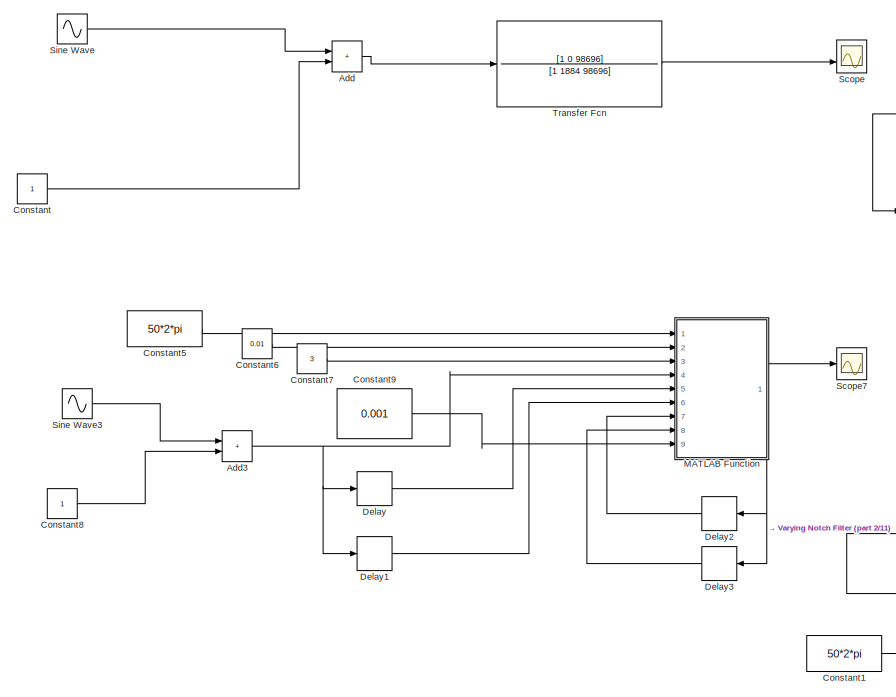
[diagram: root canvas - part 1/11, top left region]
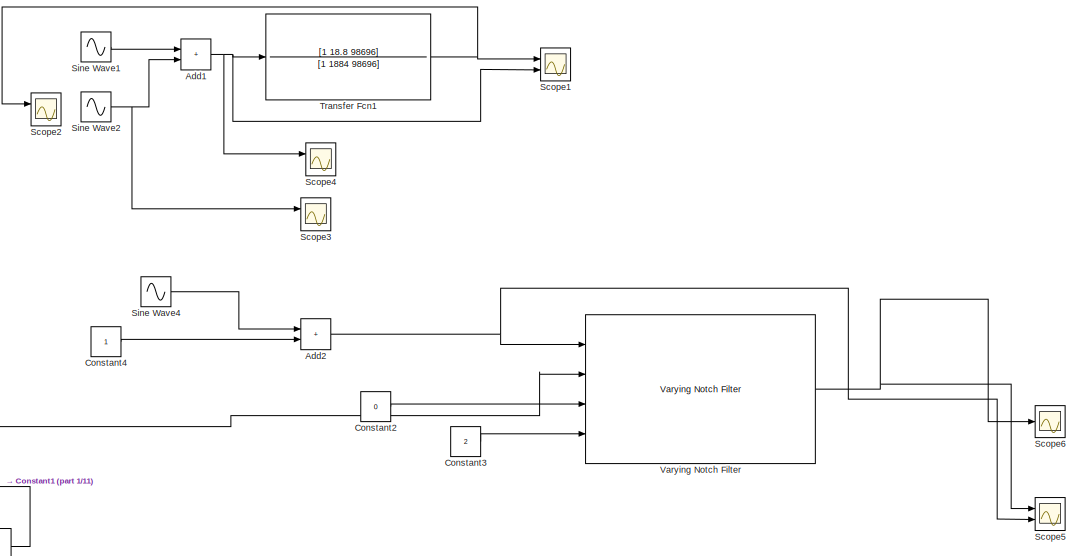
[diagram: root canvas - part 2/11, top center region]
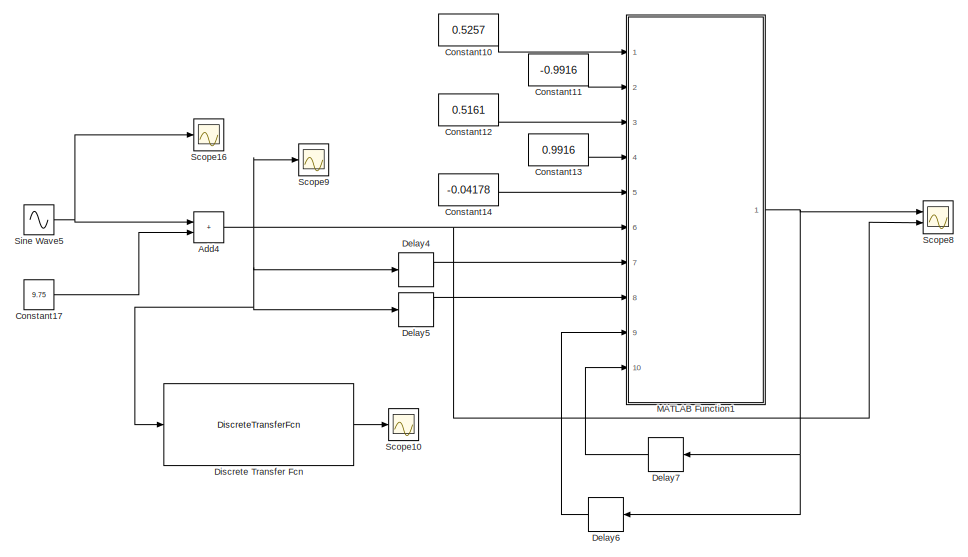
[diagram: root canvas - part 3/11, top center region]
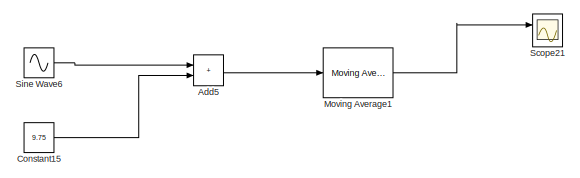
[diagram: root canvas - part 4/11, middle right region]
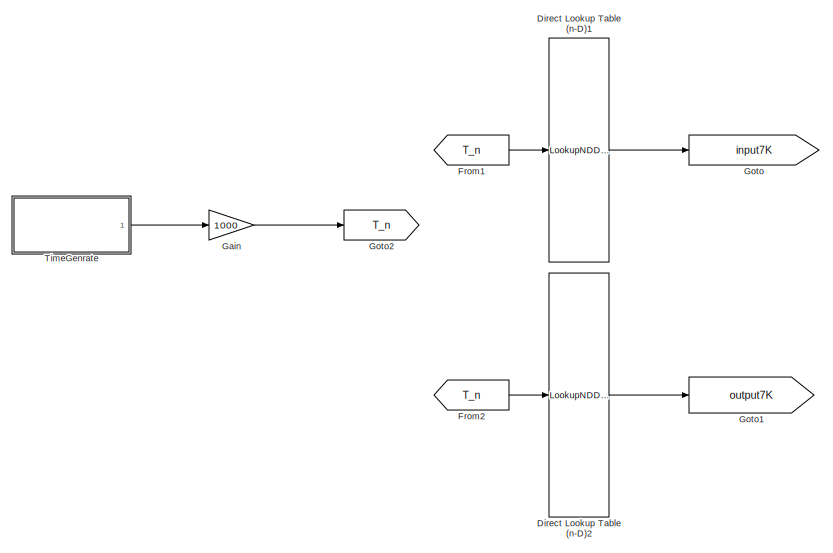
[diagram: root canvas - part 5/11, middle left region]
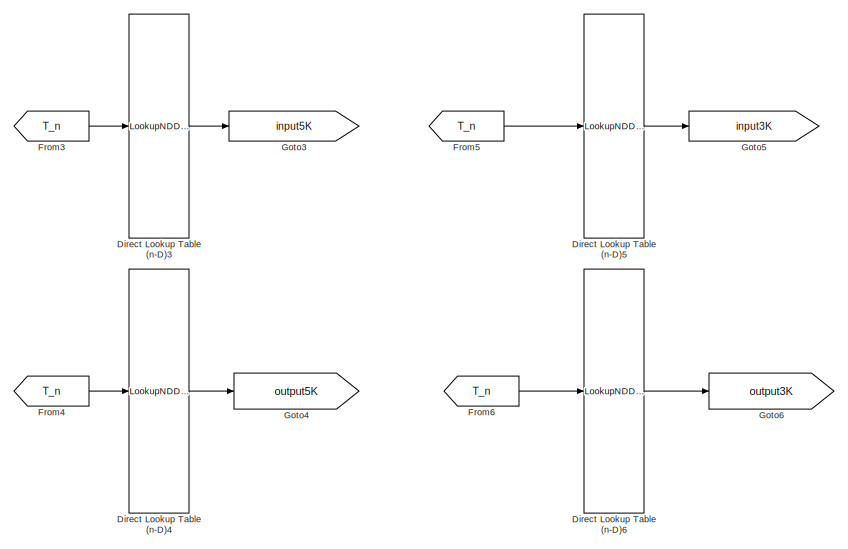
[diagram: root canvas - part 6/11, central region]
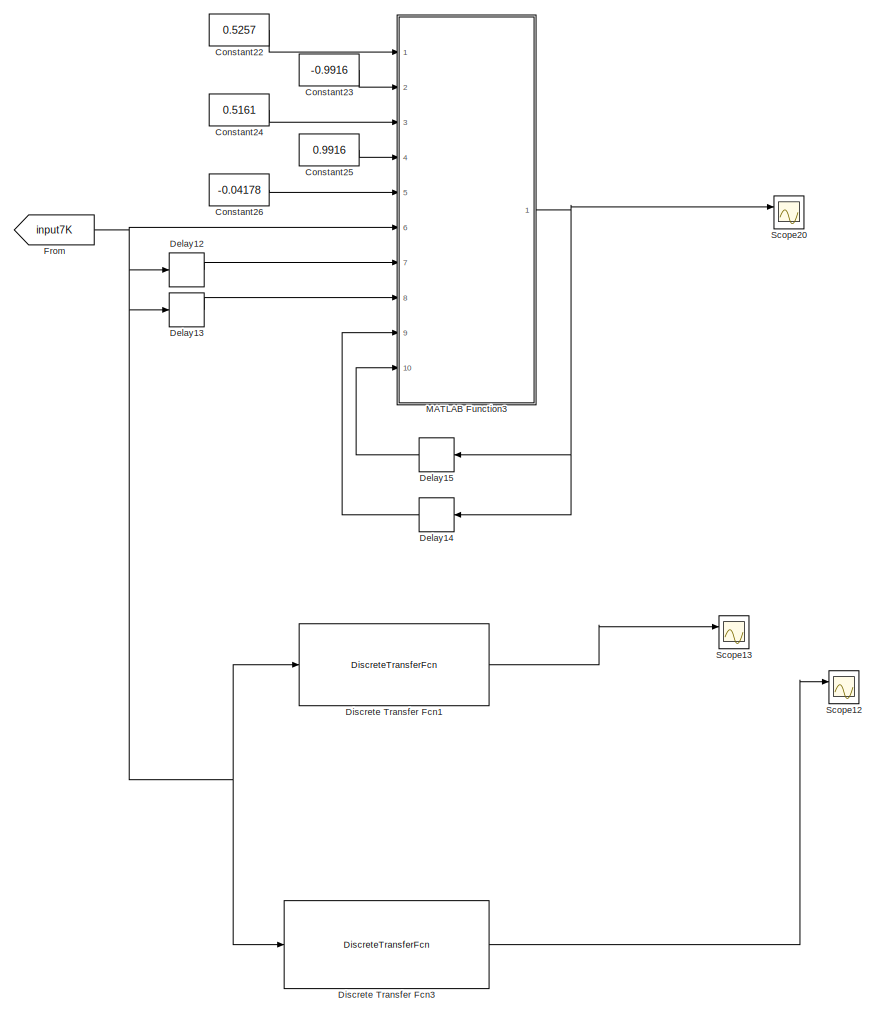
[diagram: root canvas - part 7/11, middle right region]
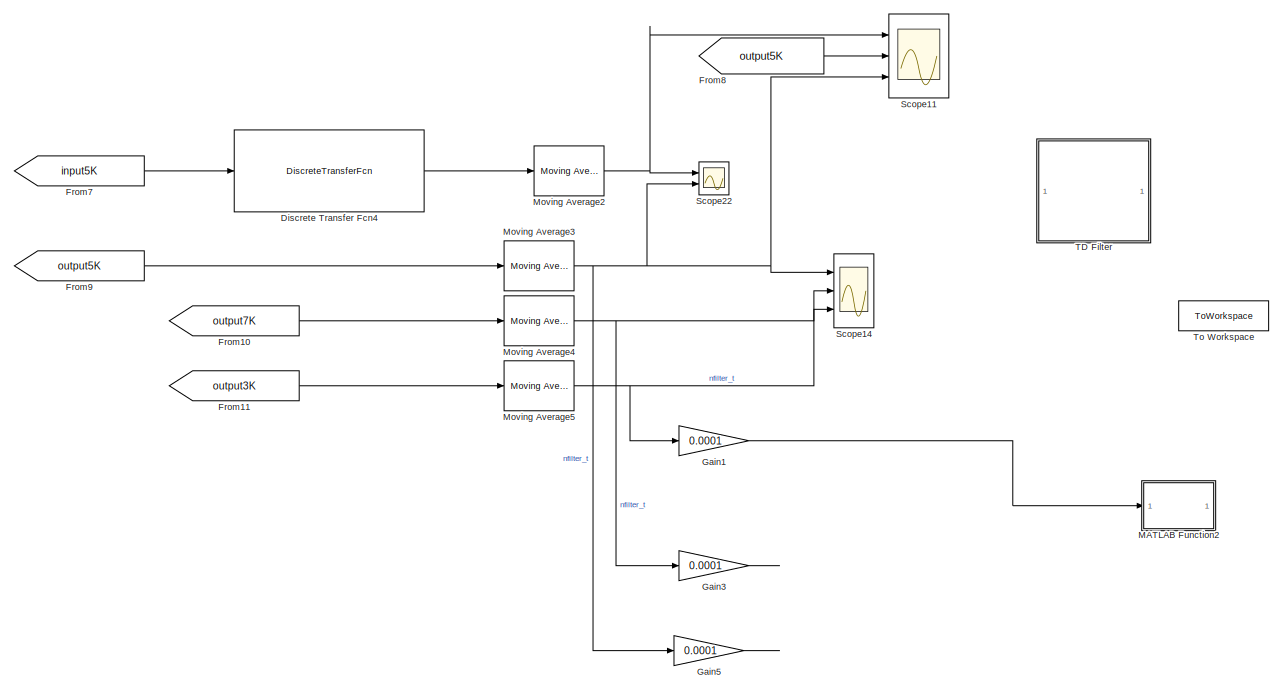
[diagram: root canvas - part 8/11, central region]
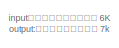
[diagram: root canvas - part 9/11, middle left region]
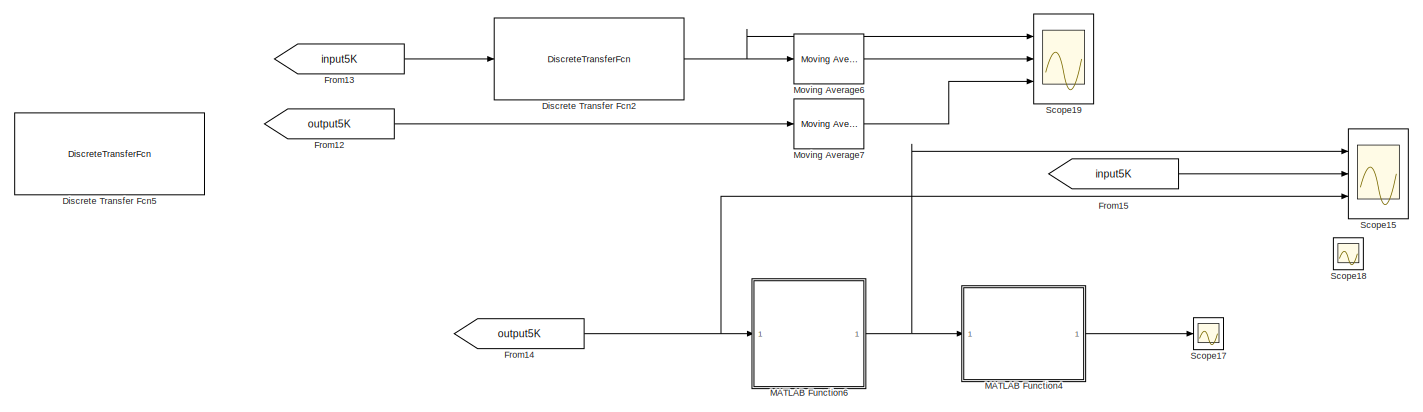
[diagram: root canvas - part 10/11, bottom left region]
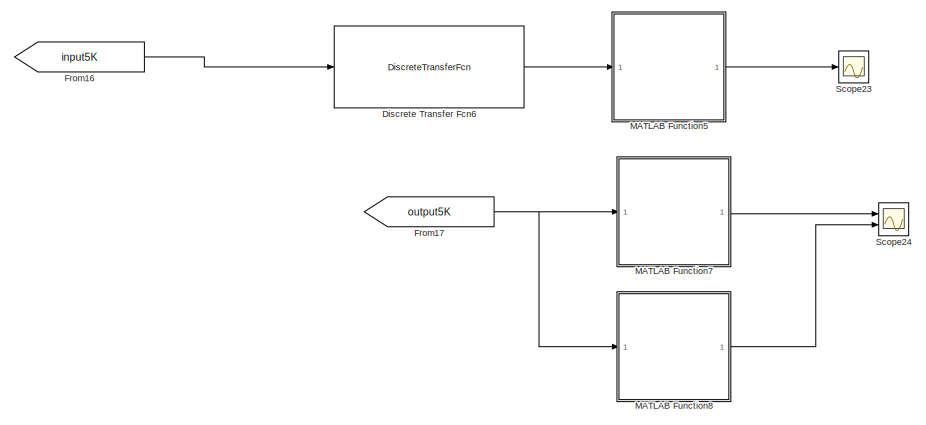
[diagram: root canvas - part 11/11, bottom left region]
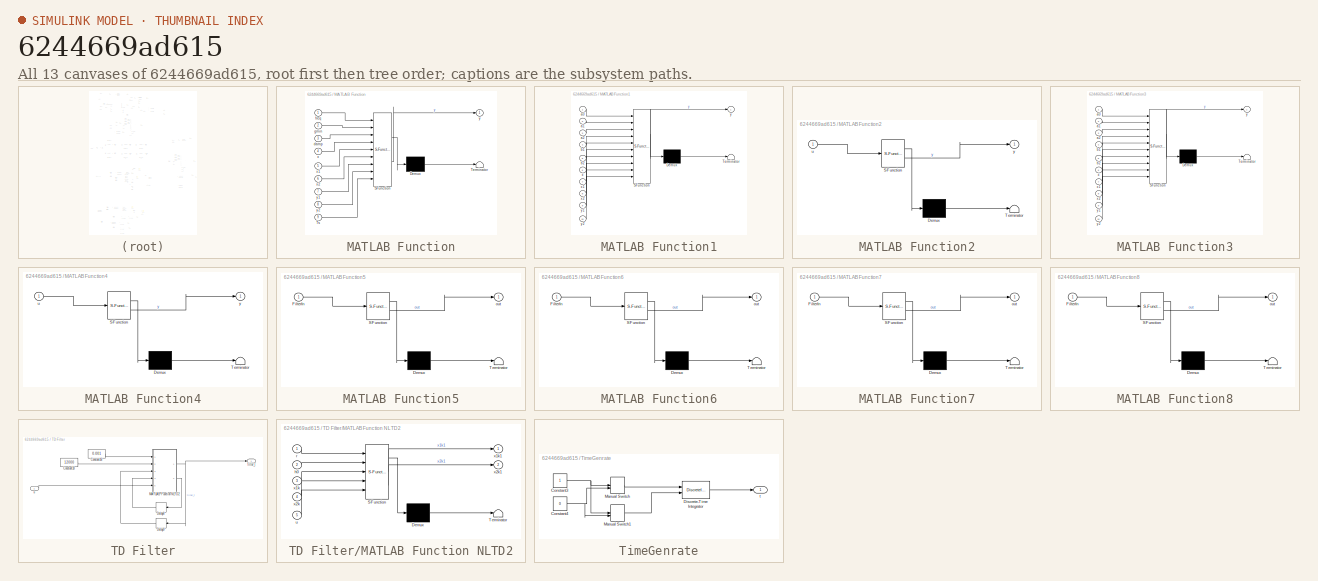
[diagram: thumbnail index - all 13 canvases of the model, root first then tree order]
MODEL slx_6244669ad615
KIND model
CONFIG AbsTol = auto
CONFIG EnableMultiTasking = off
CONFIG FixedStep = 0.001
CONFIG MaxStep = auto
CONFIG MinStep = auto
CONFIG RelTol = 1e-3
CONFIG SampleTimeConstraint = Unconstrained
CONFIG SolverName = ode1
CONFIG StartTime = 0.0
CONFIG StopTime = 10
BLOCK [Sum] Add
  Commented = on
  IconShape = rectangular
  Ports = [2, 1]
BLOCK [Sum] Add1
  Commented = on
  IconShape = rectangular
  Ports = [2, 1]
BLOCK [Sum] Add2
  IconShape = rectangular
  Ports = [2, 1]
BLOCK [Sum] Add3
  Commented = on
  IconShape = rectangular
  Ports = [2, 1]
BLOCK [Sum] Add4
  IconShape = rectangular
  Ports = [2, 1]
BLOCK [Sum] Add5
  IconShape = rectangular
  Ports = [2, 1]
BLOCK [Constant] Constant
  Commented = on
BLOCK [Constant] Constant1
  Value = 50*2*pi
BLOCK [Constant] Constant10
  Value = 0.5257
BLOCK [Constant] Constant11
  Value = -0.9916
BLOCK [Constant] Constant12
  Value = 0.5161
BLOCK [Constant] Constant13
  Value = 0.9916
BLOCK [Constant] Constant14
  Value = -0.04178
BLOCK [Constant] Constant15
  Value = 9.75
BLOCK [Constant] Constant17
  Value = 9.75
BLOCK [Constant] Constant2
  Value = 0
BLOCK [Constant] Constant22
  Value = 0.5257
BLOCK [Constant] Constant23
  Value = -0.9916
BLOCK [Constant] Constant24
  Value = 0.5161
BLOCK [Constant] Constant25
  Value = 0.9916
BLOCK [Constant] Constant26
  Value = -0.04178
BLOCK [Constant] Constant3
  Value = 2
BLOCK [Constant] Constant4
BLOCK [Constant] Constant5
  Commented = on
  Value = 50*2*pi
BLOCK [Constant] Constant6
  Commented = on
  Value = 0.01
BLOCK [Constant] Constant7
  Commented = on
  Value = 3
BLOCK [Constant] Constant8
  Commented = on
BLOCK [Constant] Constant9
  Commented = on
  Value = 0.001
BLOCK [Delay] Delay
  Commented = on
  DelayLength = 1
  InputPortMap = u0
  Ports = [1, 1]
BLOCK [Delay] Delay1
  Commented = on
  InputPortMap = u0
  Ports = [1, 1]
BLOCK [Delay] Delay12
  DelayLength = 1
  InputPortMap = u0
  Ports = [1, 1]
BLOCK [Delay] Delay13
  InputPortMap = u0
  Ports = [1, 1]
BLOCK [Delay] Delay14
  DelayLength = 1
  InputPortMap = u0
  NameLocation = top
  Ports = [1, 1]
BLOCK [Delay] Delay15
  InputPortMap = u0
  NameLocation = top
  Ports = [1, 1]
BLOCK [Delay] Delay2
  Commented = on
  DelayLength = 1
  InputPortMap = u0
  NameLocation = top
  Ports = [1, 1]
BLOCK [Delay] Delay3
  Commented = on
  InputPortMap = u0
  NameLocation = top
  Ports = [1, 1]
BLOCK [Delay] Delay4
  DelayLength = 1
  InputPortMap = u0
  Ports = [1, 1]
BLOCK [Delay] Delay5
  InputPortMap = u0
  Ports = [1, 1]
BLOCK [Delay] Delay6
  DelayLength = 1
  InputPortMap = u0
  NameLocation = top
  Ports = [1, 1]
BLOCK [Delay] Delay7
  InputPortMap = u0
  NameLocation = top
  Ports = [1, 1]
BLOCK [LookupNDDirect] Direct Lookup Table (n-D)1
  NumberOfTableDimensions = 1
  Ports = [1, 1]
  Table = alldata7K_input
BLOCK [LookupNDDirect] Direct Lookup Table (n-D)2
  NumberOfTableDimensions = 1
  Ports = [1, 1]
  Table = alldata7K_output
BLOCK [LookupNDDirect] Direct Lookup Table (n-D)3
  NumberOfTableDimensions = 1
  Ports = [1, 1]
  Table = alldata5K_input
BLOCK [LookupNDDirect] Direct Lookup Table (n-D)4
  NumberOfTableDimensions = 1
  Ports = [1, 1]
  Table = alldata5K_output
BLOCK [LookupNDDirect] Direct Lookup Table (n-D)5
  NumberOfTableDimensions = 1
  Ports = [1, 1]
  Table = alldata3K_input
BLOCK [LookupNDDirect] Direct Lookup Table (n-D)6
  NumberOfTableDimensions = 1
  Ports = [1, 1]
  Table = alldata3K_output
BLOCK [DiscreteTransferFcn] Discrete Transfer Fcn
  Denominator = [1 -0.9916 0.04178]
  InputPortMap = u0
  Numerator = [0.5257 -0.9916 0.5161]
  Ports = [1, 1]
BLOCK [DiscreteTransferFcn] Discrete Transfer Fcn1
  Denominator = [1 -0.9916 0.04178]
  InputPortMap = u0
  Numerator = [0.5257 -0.9916 0.5161]
  Ports = [1, 1]
BLOCK [DiscreteTransferFcn] Discrete Transfer Fcn2
  Denominator = [1 -0.9916 0.04178]
  InputPortMap = u0
  Numerator = [0.5257 -0.9916 0.5161]
  Ports = [1, 1]
BLOCK [DiscreteTransferFcn] Discrete Transfer Fcn3
  Denominator = Hzden
  InputPortMap = u0
  Numerator = Hznum
  Ports = [1, 1]
BLOCK [DiscreteTransferFcn] Discrete Transfer Fcn4
  Denominator = [1 -0.9916 0.04178]
  InputPortMap = u0
  Numerator = [0.5257 -0.9916 0.5161]
  Ports = [1, 1]
BLOCK [DiscreteTransferFcn] Discrete Transfer Fcn5
  Denominator = [1 -0.9916 0.04178]
  InputPortMap = u0
  Numerator = [0.5257 -0.9916 0.5161]
  Ports = [1, 1]
BLOCK [DiscreteTransferFcn] Discrete Transfer Fcn6
  Denominator = [1 -0.9916 0.04178]
  InputPortMap = u0
  Numerator = [0.5257 -0.9916 0.5161]
  Ports = [1, 1]
BLOCK [From] From
  GotoTag = input7K
BLOCK [From] From1
  GotoTag = T_n
BLOCK [From] From10
  GotoTag = output7K
BLOCK [From] From11
  GotoTag = output3K
BLOCK [From] From12
  GotoTag = output5K
BLOCK [From] From13
  GotoTag = input5K
BLOCK [From] From14
  GotoTag = output5K
BLOCK [From] From15
  GotoTag = input5K
BLOCK [From] From16
  GotoTag = input5K
BLOCK [From] From17
  GotoTag = output5K
BLOCK [From] From2
  GotoTag = T_n
BLOCK [From] From3
  GotoTag = T_n
BLOCK [From] From4
  GotoTag = T_n
BLOCK [From] From5
  GotoTag = T_n
BLOCK [From] From6
  GotoTag = T_n
BLOCK [From] From7
  GotoTag = input5K
BLOCK [From] From8
  GotoTag = output5K
BLOCK [From] From9
  GotoTag = output5K
BLOCK [Gain] Gain
  Gain = 1000
BLOCK [Gain] Gain1
  Gain = 0.0001
BLOCK [Gain] Gain3
  Gain = 0.0001
BLOCK [Gain] Gain5
  Gain = 0.0001
BLOCK [Goto] Goto
  GotoTag = input7K
BLOCK [Goto] Goto1
  GotoTag = output7K
BLOCK [Goto] Goto2
  GotoTag = T_n
BLOCK [Goto] Goto3
  GotoTag = input5K
BLOCK [Goto] Goto4
  GotoTag = output5K
BLOCK [Goto] Goto5
  GotoTag = input3K
BLOCK [Goto] Goto6
  GotoTag = output3K
BLOCK [SubSystem] MATLAB Function
  Commented = on
  ErrorFcn = Stateflow.Translate.translate
  PermitHierarchicalResolution = ExplicitOnly
  Ports = [9, 1]
  RequestExecContextInheritance = off
  SFBlockType = MATLAB Function
  TreatAsAtomicUnit = on
BLOCK [Demux] MATLAB Function/ Demux 
  Outputs = 1
  Ports = [1, 1]
BLOCK [S-Function] MATLAB Function/ SFunction 
  EnableBusSupport = on
  FunctionName = sf_sfun
  PortCounts = [9 2]
  Ports = [9, 2]
  SFcnIsStateOwnerBlock = off
  SFunctionDeploymentMode = off
  Tag = Stateflow S-Function 2
BLOCK [Terminator] MATLAB Function/ Terminator 
BLOCK [Inport] MATLAB Function/Ts
  Port = 9
BLOCK [Inport] MATLAB Function/damp
  Port = 3
BLOCK [Inport] MATLAB Function/freq
BLOCK [Inport] MATLAB Function/gmin
  Port = 2
BLOCK [Inport] MATLAB Function/x
  Port = 4
BLOCK [Inport] MATLAB Function/x1
  Port = 5
BLOCK [Inport] MATLAB Function/x2
  Port = 6
BLOCK [Outport] MATLAB Function/y
BLOCK [Inport] MATLAB Function/y1
  Port = 7
BLOCK [Inport] MATLAB Function/y2
  Port = 8
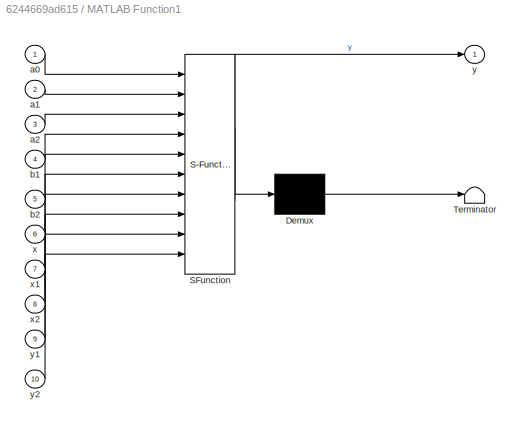
BLOCK [SubSystem] MATLAB Function1
  ErrorFcn = Stateflow.Translate.translate
  PermitHierarchicalResolution = ExplicitOnly
  Ports = [10, 1]
  RequestExecContextInheritance = off
  SFBlockType = MATLAB Function
  TreatAsAtomicUnit = on
BLOCK [Demux] MATLAB Function1/ Demux 
  Outputs = 1
  Ports = [1, 1]
BLOCK [S-Function] MATLAB Function1/ SFunction 
  EnableBusSupport = on
  FunctionName = sf_sfun
  PortCounts = [10 2]
  Ports = [10, 2]
  SFcnIsStateOwnerBlock = off
  SFunctionDeploymentMode = off
  Tag = Stateflow S-Function 1
BLOCK [Terminator] MATLAB Function1/ Terminator 
BLOCK [Inport] MATLAB Function1/a0
BLOCK [Inport] MATLAB Function1/a1
  Port = 2
BLOCK [Inport] MATLAB Function1/a2
  Port = 3
BLOCK [Inport] MATLAB Function1/b1
  Port = 4
BLOCK [Inport] MATLAB Function1/b2
  Port = 5
BLOCK [Inport] MATLAB Function1/x
  Port = 6
BLOCK [Inport] MATLAB Function1/x1
  Port = 7
BLOCK [Inport] MATLAB Function1/x2
  Port = 8
BLOCK [Outport] MATLAB Function1/y
BLOCK [Inport] MATLAB Function1/y1
  Port = 9
BLOCK [Inport] MATLAB Function1/y2
  Port = 10
BLOCK [SubSystem] MATLAB Function2
  ErrorFcn = Stateflow.Translate.translate
  PermitHierarchicalResolution = ExplicitOnly
  Ports = [1, 1]
  RequestExecContextInheritance = off
  SFBlockType = MATLAB Function
  TreatAsAtomicUnit = on
BLOCK [Demux] MATLAB Function2/ Demux 
  Outputs = 1
  Ports = [1, 1]
BLOCK [S-Function] MATLAB Function2/ SFunction 
  EnableBusSupport = on
  FunctionName = sf_sfun
  PortCounts = [1 2]
  Ports = [1, 2]
  SFcnIsStateOwnerBlock = off
  SFunctionDeploymentMode = off
  Tag = Stateflow S-Function 3
BLOCK [Terminator] MATLAB Function2/ Terminator 
BLOCK [Inport] MATLAB Function2/u
BLOCK [Outport] MATLAB Function2/y
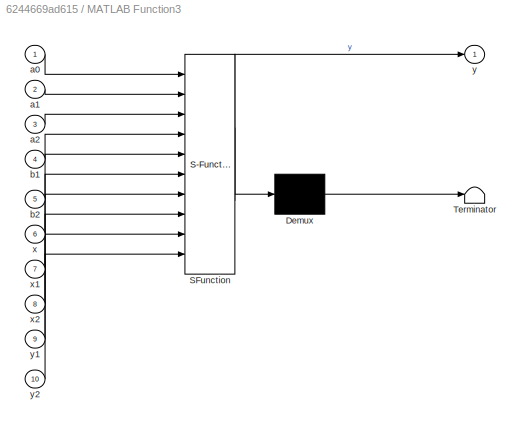
BLOCK [SubSystem] MATLAB Function3
  ErrorFcn = Stateflow.Translate.translate
  PermitHierarchicalResolution = ExplicitOnly
  Ports = [10, 1]
  RequestExecContextInheritance = off
  SFBlockType = MATLAB Function
  TreatAsAtomicUnit = on
BLOCK [Demux] MATLAB Function3/ Demux 
  Outputs = 1
  Ports = [1, 1]
BLOCK [S-Function] MATLAB Function3/ SFunction 
  EnableBusSupport = on
  FunctionName = sf_sfun
  PortCounts = [10 2]
  Ports = [10, 2]
  SFcnIsStateOwnerBlock = off
  SFunctionDeploymentMode = off
  Tag = Stateflow S-Function 4
BLOCK [Terminator] MATLAB Function3/ Terminator 
BLOCK [Inport] MATLAB Function3/a0
BLOCK [Inport] MATLAB Function3/a1
  Port = 2
BLOCK [Inport] MATLAB Function3/a2
  Port = 3
BLOCK [Inport] MATLAB Function3/b1
  Port = 4
BLOCK [Inport] MATLAB Function3/b2
  Port = 5
BLOCK [Inport] MATLAB Function3/x
  Port = 6
BLOCK [Inport] MATLAB Function3/x1
  Port = 7
BLOCK [Inport] MATLAB Function3/x2
  Port = 8
BLOCK [Outport] MATLAB Function3/y
BLOCK [Inport] MATLAB Function3/y1
  Port = 9
BLOCK [Inport] MATLAB Function3/y2
  Port = 10
BLOCK [SubSystem] MATLAB Function4
  ErrorFcn = Stateflow.Translate.translate
  PermitHierarchicalResolution = ExplicitOnly
  Ports = [1, 1]
  RequestExecContextInheritance = off
  SFBlockType = MATLAB Function
  TreatAsAtomicUnit = on
BLOCK [Demux] MATLAB Function4/ Demux 
  Outputs = 1
  Ports = [1, 1]
BLOCK [S-Function] MATLAB Function4/ SFunction 
  EnableBusSupport = on
  FunctionName = sf_sfun
  PortCounts = [1 2]
  Ports = [1, 2]
  SFcnIsStateOwnerBlock = off
  SFunctionDeploymentMode = off
  Tag = Stateflow S-Function 5
BLOCK [Terminator] MATLAB Function4/ Terminator 
BLOCK [Inport] MATLAB Function4/u
BLOCK [Outport] MATLAB Function4/y
BLOCK [SubSystem] MATLAB Function5
  ErrorFcn = Stateflow.Translate.translate
  PermitHierarchicalResolution = ExplicitOnly
  Ports = [1, 1]
  RequestExecContextInheritance = off
  SFBlockType = MATLAB Function
  TreatAsAtomicUnit = on
BLOCK [Demux] MATLAB Function5/ Demux 
  Outputs = 1
  Ports = [1, 1]
BLOCK [S-Function] MATLAB Function5/ SFunction 
  EnableBusSupport = on
  FunctionName = sf_sfun
  PortCounts = [1 2]
  Ports = [1, 2]
  SFcnIsStateOwnerBlock = off
  SFunctionDeploymentMode = off
  Tag = Stateflow S-Function 6
BLOCK [Terminator] MATLAB Function5/ Terminator 
BLOCK [Inport] MATLAB Function5/FilterIn
BLOCK [Outport] MATLAB Function5/out
BLOCK [SubSystem] MATLAB Function6
  ErrorFcn = Stateflow.Translate.translate
  PermitHierarchicalResolution = ExplicitOnly
  Ports = [1, 1]
  RequestExecContextInheritance = off
  SFBlockType = MATLAB Function
  TreatAsAtomicUnit = on
BLOCK [Demux] MATLAB Function6/ Demux 
  Outputs = 1
  Ports = [1, 1]
BLOCK [S-Function] MATLAB Function6/ SFunction 
  EnableBusSupport = on
  FunctionName = sf_sfun
  PortCounts = [1 2]
  Ports = [1, 2]
  SFcnIsStateOwnerBlock = off
  SFunctionDeploymentMode = off
  Tag = Stateflow S-Function 7
BLOCK [Terminator] MATLAB Function6/ Terminator 
BLOCK [Inport] MATLAB Function6/FilterIn
BLOCK [Outport] MATLAB Function6/out
BLOCK [SubSystem] MATLAB Function7
  ErrorFcn = Stateflow.Translate.translate
  PermitHierarchicalResolution = ExplicitOnly
  Ports = [1, 1]
  RequestExecContextInheritance = off
  SFBlockType = MATLAB Function
  TreatAsAtomicUnit = on
BLOCK [Demux] MATLAB Function7/ Demux 
  Outputs = 1
  Ports = [1, 1]
BLOCK [S-Function] MATLAB Function7/ SFunction 
  EnableBusSupport = on
  FunctionName = sf_sfun
  PortCounts = [1 2]
  Ports = [1, 2]
  SFcnIsStateOwnerBlock = off
  SFunctionDeploymentMode = off
  Tag = Stateflow S-Function 8
BLOCK [Terminator] MATLAB Function7/ Terminator 
BLOCK [Inport] MATLAB Function7/FilterIn
BLOCK [Outport] MATLAB Function7/out
BLOCK [SubSystem] MATLAB Function8
  ErrorFcn = Stateflow.Translate.translate
  PermitHierarchicalResolution = ExplicitOnly
  Ports = [1, 1]
  RequestExecContextInheritance = off
  SFBlockType = MATLAB Function
  TreatAsAtomicUnit = on
BLOCK [Demux] MATLAB Function8/ Demux 
  Outputs = 1
  Ports = [1, 1]
BLOCK [S-Function] MATLAB Function8/ SFunction 
  EnableBusSupport = on
  FunctionName = sf_sfun
  PortCounts = [1 2]
  Ports = [1, 2]
  SFcnIsStateOwnerBlock = off
  SFunctionDeploymentMode = off
  Tag = Stateflow S-Function 9
BLOCK [Terminator] MATLAB Function8/ Terminator 
BLOCK [Inport] MATLAB Function8/FilterIn
BLOCK [Outport] MATLAB Function8/out
BLOCK [Reference] Moving Average1  REF=eeGeneralControl/Moving Average
  Ports = [1, 1]
  SourceBlock = eeGeneralControl/Moving Average
  SourceProductBaseCode = PS
  SourceType = Moving Average
BLOCK [Reference] Moving Average2  REF=eeGeneralControl/Moving Average
  Ports = [1, 1]
  SourceBlock = eeGeneralControl/Moving Average
  SourceProductBaseCode = PS
  SourceType = Moving Average
BLOCK [Reference] Moving Average3  REF=eeGeneralControl/Moving Average
  Ports = [1, 1]
  SourceBlock = eeGeneralControl/Moving Average
  SourceProductBaseCode = PS
  SourceType = Moving Average
BLOCK [Reference] Moving Average4  REF=eeGeneralControl/Moving Average
  Ports = [1, 1]
  SourceBlock = eeGeneralControl/Moving Average
  SourceProductBaseCode = PS
  SourceType = Moving Average
BLOCK [Reference] Moving Average5  REF=eeGeneralControl/Moving Average
  Ports = [1, 1]
  SourceBlock = eeGeneralControl/Moving Average
  SourceProductBaseCode = PS
  SourceType = Moving Average
BLOCK [Reference] Moving Average6  REF=eeGeneralControl/Moving Average
  Ports = [1, 1]
  SourceBlock = eeGeneralControl/Moving Average
  SourceProductBaseCode = PS
  SourceType = Moving Average
BLOCK [Reference] Moving Average7  REF=eeGeneralControl/Moving Average
  Ports = [1, 1]
  SourceBlock = eeGeneralControl/Moving Average
  SourceProductBaseCode = PS
  SourceType = Moving Average
BLOCK [Scope] Scope
  Commented = on
  Floating = off
  NumInputPorts = 2
  Ports = [2]
  ScopeSpecificationString = Simulink.scopes.TimeScopeBlockCfg('CurrentConfiguration', extmgr.ConfigurationSet(extmgr.Configuration('Core','General UI',true),extmgr.Configuration('Core','Source UI',true),extmgr.Configuration('Sources','WiredSimulink',true),extmgr.Configuration('Visuals','Time Domain',true,'SerializedDisplays',{struct('MinYLimReal','-1.01727','MaxYLimReal','1.24249','YLabelReal','','MinYLimMag','0.00000','MaxY...<+1386ch>
BLOCK [Scope] Scope1
  Commented = on
  Floating = off
  NumInputPorts = 2
  Ports = [2]
  ScopeSpecificationString = Simulink.scopes.TimeScopeBlockCfg('CurrentConfiguration', extmgr.ConfigurationSet(extmgr.Configuration('Core','General UI',true),extmgr.Configuration('Core','Source UI',true),extmgr.Configuration('Sources','WiredSimulink',true,'DataLoggingVariableName','ScopeData1'),extmgr.Configuration('Visuals','Time Domain',true,'SerializedDisplays',{struct('MinYLimReal','-2.49938','MaxYLimReal','2.49938','YLab...<+1451ch>
BLOCK [Scope] Scope10
  Floating = off
  NumInputPorts = 1
  Ports = [1]
  ScopeSpecificationString = Simulink.scopes.TimeScopeBlockCfg('CurrentConfiguration', extmgr.ConfigurationSet(extmgr.Configuration('Core','General UI',true),extmgr.Configuration('Core','Source UI',true),extmgr.Configuration('Sources','WiredSimulink',true,'DataLoggingVariableName','ScopeData10'),extmgr.Configuration('Visuals','Time Domain',true,'SerializedDisplays',{struct('MinYLimReal','-0.0083','MaxYLimReal','1.11593','YLab...<+1423ch>
BLOCK [Scope] Scope11
  Floating = off
  NumInputPorts = 3
  Ports = [3]
  ScopeSpecificationString = Simulink.scopes.TimeScopeBlockCfg('CurrentConfiguration', extmgr.ConfigurationSet(extmgr.Configuration('Core','General UI',true),extmgr.Configuration('Core','Source UI',true),extmgr.Configuration('Sources','WiredSimulink',true,'DataLoggingVariableName','ScopeData1'),extmgr.Configuration('Visuals','Time Domain',true,'SerializedDisplays',{struct('MinYLimReal','16868.97835','MaxYLimReal','17256.60161...<+1518ch>
BLOCK [Scope] Scope12
  Floating = off
  NumInputPorts = 2
  Ports = [2]
  ScopeSpecificationString = Simulink.scopes.TimeScopeBlockCfg('CurrentConfiguration', extmgr.ConfigurationSet(extmgr.Configuration('Core','General UI',true),extmgr.Configuration('Core','Source UI',true),extmgr.Configuration('Sources','WiredSimulink',true,'DataLoggingVariableName','ScopeData7'),extmgr.Configuration('Visuals','Time Domain',true,'SerializedDisplays',{struct('MinYLimReal','-2685.3139','MaxYLimReal','21487.56118'...<+1507ch>
BLOCK [Scope] Scope13
  Floating = off
  NumInputPorts = 2
  Ports = [2]
  ScopeSpecificationString = Simulink.scopes.TimeScopeBlockCfg('CurrentConfiguration', extmgr.ConfigurationSet(extmgr.Configuration('Core','General UI',true),extmgr.Configuration('Core','Source UI',true),extmgr.Configuration('Sources','WiredSimulink',true,'DataLoggingVariableName','ScopeData8'),extmgr.Configuration('Visuals','Time Domain',true,'SerializedDisplays',{struct('MinYLimReal','-2672.83403','MaxYLimReal','29213.42941...<+1480ch>
BLOCK [Scope] Scope14
  Floating = off
  NumInputPorts = 3
  Ports = [3]
  ScopeSpecificationString = Simulink.scopes.TimeScopeBlockCfg('CurrentConfiguration', extmgr.ConfigurationSet(extmgr.Configuration('Core','General UI',true),extmgr.Configuration('Core','Source UI',true),extmgr.Configuration('Sources','WiredSimulink',true,'DataLoggingVariableName','ScopeData2'),extmgr.Configuration('Visuals','Time Domain',true,'SerializedDisplays',{struct('MinYLimReal','16773.14565','MaxYLimReal','17633.85716...<+1495ch>
BLOCK [Scope] Scope15
  Floating = off
  NumInputPorts = 3
  Ports = [3]
  ScopeSpecificationString = Simulink.scopes.TimeScopeBlockCfg('CurrentConfiguration', extmgr.ConfigurationSet(extmgr.Configuration('Core','General UI',true),extmgr.Configuration('Core','Source UI',true),extmgr.Configuration('Sources','WiredSimulink',true,'DataLoggingVariableName','ScopeData3'),extmgr.Configuration('Visuals','Time Domain',true,'SerializedDisplays',{struct('MinYLimReal','-2436.6125','MaxYLimReal','30428.5125',...<+1525ch>
BLOCK [Scope] Scope16
  Floating = off
  NumInputPorts = 1
  Ports = [1]
  ScopeSpecificationString = Simulink.scopes.TimeScopeBlockCfg('CurrentConfiguration', extmgr.ConfigurationSet(extmgr.Configuration('Core','General UI',true),extmgr.Configuration('Core','Source UI',true),extmgr.Configuration('Sources','WiredSimulink',true,'DataLoggingVariableName','ScopeData16'),extmgr.Configuration('Visuals','Time Domain',true,'SerializedDisplays',{struct('MinYLimReal','-1.5625','MaxYLimReal','1.5625','YLabe...<+1437ch>
BLOCK [Scope] Scope17
  Floating = off
  NumInputPorts = 1
  Ports = [1]
  ScopeSpecificationString = Simulink.scopes.TimeScopeBlockCfg('CurrentConfiguration', extmgr.ConfigurationSet(extmgr.Configuration('Core','General UI',true),extmgr.Configuration('Core','Source UI',true),extmgr.Configuration('Sources','WiredSimulink',true,'DataLoggingVariableName','ScopeData4'),extmgr.Configuration('Visuals','Time Domain',true,'SerializedDisplays',{struct('MinYLimReal','461.62899','MaxYLimReal','890.0245','YL...<+1429ch>
BLOCK [Scope] Scope18
  Floating = off
  NumInputPorts = 1
  Ports = [1]
  ScopeSpecificationString = Simulink.scopes.TimeScopeBlockCfg('CurrentConfiguration', extmgr.ConfigurationSet(extmgr.Configuration('Core','General UI',true),extmgr.Configuration('Core','Source UI',true),extmgr.Configuration('Sources','WiredSimulink',true,'DataLoggingVariableName','ScopeData5'),extmgr.Configuration('Visuals','Time Domain',true,'SerializedDisplays',{struct('MinYLimReal','461.62899','MaxYLimReal','890.0245','YL...<+1429ch>
BLOCK [Scope] Scope19
  Floating = off
  NumInputPorts = 3
  Ports = [3]
  ScopeSpecificationString = Simulink.scopes.TimeScopeBlockCfg('CurrentConfiguration', extmgr.ConfigurationSet(extmgr.Configuration('Core','General UI',true),extmgr.Configuration('Core','Source UI',true),extmgr.Configuration('Sources','WiredSimulink',true,'DataLoggingVariableName','ScopeData6'),extmgr.Configuration('Visuals','Time Domain',true,'SerializedDisplays',{struct('MinYLimReal','-2199.55335','MaxYLimReal','19795.98015...<+1515ch>
BLOCK [Scope] Scope2
  Commented = on
  Floating = off
  NumInputPorts = 2
  Ports = [2]
  ScopeSpecificationString = Simulink.scopes.TimeScopeBlockCfg('CurrentConfiguration', extmgr.ConfigurationSet(extmgr.Configuration('Core','General UI',true),extmgr.Configuration('Core','Source UI',true),extmgr.Configuration('Sources','WiredSimulink',true,'DataLoggingVariableName','ScopeData2'),extmgr.Configuration('Visuals','Time Domain',true,'SerializedDisplays',{struct('MinYLimReal','-2.49938','MaxYLimReal','2.49938','YLab...<+1451ch>
BLOCK [Scope] Scope20
  Floating = off
  NumInputPorts = 2
  Ports = [2]
  ScopeSpecificationString = Simulink.scopes.TimeScopeBlockCfg('CurrentConfiguration', extmgr.ConfigurationSet(extmgr.Configuration('Core','General UI',true),extmgr.Configuration('Core','Source UI',true),extmgr.Configuration('Sources','WiredSimulink',true,'DataLoggingVariableName','ScopeData5'),extmgr.Configuration('Visuals','Time Domain',true,'SerializedDisplays',{struct('MinYLimReal','-2685.3139','MaxYLimReal','21487.56118'...<+1472ch>
BLOCK [Scope] Scope21
  Floating = off
  NumInputPorts = 2
  Ports = [2]
  ScopeSpecificationString = Simulink.scopes.TimeScopeBlockCfg('CurrentConfiguration', extmgr.ConfigurationSet(extmgr.Configuration('Core','General UI',true),extmgr.Configuration('Core','Source UI',true),extmgr.Configuration('Sources','WiredSimulink',true,'DataLoggingVariableName','ScopeData10'),extmgr.Configuration('Visuals','Time Domain',true,'SerializedDisplays',{struct('MinYLimReal','-1.21875','MaxYLimReal','10.96875','YL...<+1459ch>
BLOCK [Scope] Scope22
  Floating = off
  NumInputPorts = 2
  Ports = [2]
  ScopeSpecificationString = Simulink.scopes.TimeScopeBlockCfg('CurrentConfiguration', extmgr.ConfigurationSet(extmgr.Configuration('Core','General UI',true),extmgr.Configuration('Core','Source UI',true),extmgr.Configuration('Sources','WiredSimulink',true,'DataLoggingVariableName','ScopeData11'),extmgr.Configuration('Visuals','Time Domain',true,'SerializedDisplays',{struct('MinYLimReal','4627.25','MaxYLimReal','29894.75','YLa...<+1468ch>
BLOCK [Scope] Scope23
  Floating = off
  NumInputPorts = 1
  Ports = [1]
  ScopeSpecificationString = Simulink.scopes.TimeScopeBlockCfg('CurrentConfiguration', extmgr.ConfigurationSet(extmgr.Configuration('Core','General UI',true),extmgr.Configuration('Core','Source UI',true),extmgr.Configuration('Sources','WiredSimulink',true,'DataLoggingVariableName','ScopeData7'),extmgr.Configuration('Visuals','Time Domain',true,'SerializedDisplays',{struct('MinYLimReal','-2200.19995','MaxYLimReal','19801.79959...<+1445ch>
BLOCK [Scope] Scope24
  Floating = off
  NumInputPorts = 2
  Ports = [2]
  ScopeSpecificationString = Simulink.scopes.TimeScopeBlockCfg('CurrentConfiguration', extmgr.ConfigurationSet(extmgr.Configuration('Core','General UI',true),extmgr.Configuration('Core','Source UI',true),extmgr.Configuration('Sources','WiredSimulink',true,'DataLoggingVariableName','ScopeData8'),extmgr.Configuration('Visuals','Time Domain',true,'SerializedDisplays',{struct('MinYLimReal','-2140.52083','MaxYLimReal','19264.6875'...<+1460ch>
BLOCK [Scope] Scope3
  Commented = on
  Floating = off
  NumInputPorts = 2
  Ports = [2]
  ScopeSpecificationString = Simulink.scopes.TimeScopeBlockCfg('CurrentConfiguration', extmgr.ConfigurationSet(extmgr.Configuration('Core','General UI',true),extmgr.Configuration('Core','Source UI',true),extmgr.Configuration('Sources','WiredSimulink',true,'DataLoggingVariableName','ScopeData3'),extmgr.Configuration('Visuals','Time Domain',true,'SerializedDisplays',{struct('MinYLimReal','-2.49938','MaxYLimReal','2.49938','YLab...<+1448ch>
BLOCK [Scope] Scope4
  Commented = on
  Floating = off
  NumInputPorts = 2
  Ports = [2]
  ScopeSpecificationString = Simulink.scopes.TimeScopeBlockCfg('CurrentConfiguration', extmgr.ConfigurationSet(extmgr.Configuration('Core','General UI',true),extmgr.Configuration('Core','Source UI',true),extmgr.Configuration('Sources','WiredSimulink',true,'DataLoggingVariableName','ScopeData4'),extmgr.Configuration('Visuals','Time Domain',true,'SerializedDisplays',{struct('MinYLimReal','-2.49938','MaxYLimReal','2.49938','YLab...<+1442ch>
BLOCK [Scope] Scope5
  Floating = off
  NumInputPorts = 2
  Ports = [2]
  ScopeSpecificationString = Simulink.scopes.TimeScopeBlockCfg('CurrentConfiguration', extmgr.ConfigurationSet(extmgr.Configuration('Core','General UI',true),extmgr.Configuration('Core','Source UI',true),extmgr.Configuration('Sources','WiredSimulink',true,'DataLoggingVariableName','ScopeData5'),extmgr.Configuration('Visuals','Time Domain',true,'SerializedDisplays',{struct('MinYLimReal','-0.61733','MaxYLimReal','1.51304','YLab...<+1430ch>
BLOCK [Scope] Scope6
  Floating = off
  NumInputPorts = 1
  Ports = [1]
  ScopeSpecificationString = Simulink.scopes.TimeScopeBlockCfg('CurrentConfiguration', extmgr.ConfigurationSet(extmgr.Configuration('Core','General UI',true),extmgr.Configuration('Core','Source UI',true),extmgr.Configuration('Sources','WiredSimulink',true,'DataLoggingVariableName','ScopeData6'),extmgr.Configuration('Visuals','Time Domain',true,'SerializedDisplays',{struct('MinYLimReal','0.13575','MaxYLimReal','1.1158','YLabel...<+1417ch>
BLOCK [Scope] Scope7
  Commented = on
  Floating = off
  NumInputPorts = 1
  Ports = [1]
  ScopeSpecificationString = Simulink.scopes.TimeScopeBlockCfg('CurrentConfiguration', extmgr.ConfigurationSet(extmgr.Configuration('Core','General UI',true),extmgr.Configuration('Core','Source UI',true),extmgr.Configuration('Sources','WiredSimulink',true,'DataLoggingVariableName','ScopeData7'),extmgr.Configuration('Visuals','Time Domain',true,'SerializedDisplays',{struct('MinYLimReal','-90930386857439233211738746593255216603...<+3872ch>
BLOCK [Scope] Scope8
  Floating = off
  NumInputPorts = 2
  Ports = [2]
  ScopeSpecificationString = Simulink.scopes.TimeScopeBlockCfg('CurrentConfiguration', extmgr.ConfigurationSet(extmgr.Configuration('Core','General UI',true),extmgr.Configuration('Core','Source UI',true),extmgr.Configuration('Sources','WiredSimulink',true,'DataLoggingVariableName','ScopeData8'),extmgr.Configuration('Visuals','Time Domain',true,'SerializedDisplays',{struct('MinYLimReal','9.7572535756','MaxYLimReal','9.75725357...<+1492ch>
BLOCK [Scope] Scope9
  Floating = off
  NumInputPorts = 1
  Ports = [1]
  ScopeSpecificationString = Simulink.scopes.TimeScopeBlockCfg('CurrentConfiguration', extmgr.ConfigurationSet(extmgr.Configuration('Core','General UI',true),extmgr.Configuration('Core','Source UI',true),extmgr.Configuration('Sources','WiredSimulink',true,'DataLoggingVariableName','ScopeData9'),extmgr.Configuration('Visuals','Time Domain',true,'SerializedDisplays',{struct('MinYLimReal','8.1875','MaxYLimReal','11.3125','YLabel...<+1401ch>
BLOCK [Sin] Sine Wave
  Amplitude = 0.3
  Commented = on
  Frequency = 50*2*pi
  Ports = [0, 1]
  SampleTime = 0
BLOCK [Sin] Sine Wave1
  Commented = on
  Frequency = 50*2*pi
  Ports = [0, 1]
  SampleTime = 0
BLOCK [Sin] Sine Wave2
  Commented = on
  Frequency = 100*2*pi
  Ports = [0, 1]
  SampleTime = 0
BLOCK [Sin] Sine Wave3
  Amplitude = 0.3
  Commented = on
  Frequency = 50*2*pi
  Ports = [0, 1]
  SampleTime = 0
BLOCK [Sin] Sine Wave4
  Amplitude = 0.3
  Frequency = 50*2*pi
  Ports = [0, 1]
  SampleTime = 0
BLOCK [Sin] Sine Wave5
  Amplitude = 1.25
  Frequency = 50*2*pi
  Phase = pi/2
  Ports = [0, 1]
  SampleTime = 0
BLOCK [Sin] Sine Wave6
  Amplitude = 1.25
  Frequency = 50*2*pi
  Phase = pi/2
  Ports = [0, 1]
  SampleTime = 0
BLOCK [SubSystem] TD Filter
  Ports = [1, 1]
  RequestExecContextInheritance = off
BLOCK [Constant] TD Filter/Constant16
  Value = 0.001
BLOCK [Constant] TD Filter/Constant18
  Value = 12000
BLOCK [Delay] TD Filter/Delay8
  DelayLength = 1
  InputPortMap = u0
  Ports = [1, 1]
BLOCK [Delay] TD Filter/Delay9
  DelayLength = 1
  InputPortMap = u0
  Ports = [1, 1]
BLOCK [SubSystem] TD Filter/MATLAB Function NLTD2
  ErrorFcn = Stateflow.Translate.translate
  PermitHierarchicalResolution = ExplicitOnly
  Ports = [5, 2]
  RequestExecContextInheritance = off
  SFBlockType = MATLAB Function
  TreatAsAtomicUnit = on
BLOCK [Demux] TD Filter/MATLAB Function NLTD2/ Demux 
  Outputs = 1
  Ports = [1, 1]
BLOCK [S-Function] TD Filter/MATLAB Function NLTD2/ SFunction 
  EnableBusSupport = on
  FunctionName = sf_sfun
  PortCounts = [5 3]
  Ports = [5, 3]
  SFcnIsStateOwnerBlock = off
  SFunctionDeploymentMode = off
  Tag = Stateflow S-Function 26
BLOCK [Terminator] TD Filter/MATLAB Function NLTD2/ Terminator 
BLOCK [Inport] TD Filter/MATLAB Function NLTD2/h0
  Port = 2
BLOCK [Inport] TD Filter/MATLAB Function NLTD2/r
BLOCK [Inport] TD Filter/MATLAB Function NLTD2/u
  Port = 5
BLOCK [Inport] TD Filter/MATLAB Function NLTD2/x1k
  Port = 3
BLOCK [Outport] TD Filter/MATLAB Function NLTD2/x1k1
  VectorParamsAs1DForOutWhenUnconnected = off
BLOCK [Inport] TD Filter/MATLAB Function NLTD2/x2k
  Port = 4
BLOCK [Outport] TD Filter/MATLAB Function NLTD2/x2k1
  Port = 2
  VectorParamsAs1DForOutWhenUnconnected = off
BLOCK [Outport] TD Filter/filter_t
BLOCK [Inport] TD Filter/u
BLOCK [SubSystem] TimeGenrate
  Ports = [0, 1]
  RequestExecContextInheritance = off
BLOCK [Constant] TimeGenrate/Constant3
BLOCK [Constant] TimeGenrate/Constant4
  Value = 0
BLOCK [DiscreteIntegrator] TimeGenrate/Discrete-Time Integrator
  ExternalReset = either
  ICPrevOutput = DiscIntNeverNeededParam
  ICPrevScaledInput = DiscIntNeverNeededParam
  InitialConditionSetting = Auto
  Ports = [2, 1]
  SampleTime = -1
BLOCK [ManualSwitch] TimeGenrate/Manual Switch
BLOCK [ManualSwitch] TimeGenrate/Manual Switch1
BLOCK [Outport] TimeGenrate/t
BLOCK [ToWorkspace] To Workspace
  FixptAsFi = on
  MaxDataPoints = inf
  Ports = [1]
  SampleTime = -1
  VariableName = R
BLOCK [TransferFcn] Transfer Fcn
  Commented = on
  Denominator = [1 1884 98696]
  Numerator = [1 0 98696]
BLOCK [TransferFcn] Transfer Fcn1
  Commented = on
  Denominator = [1 1884 98696]
  Numerator = [1 18.8 98696]
BLOCK [Reference] Varying Notch Filter  REF=cstblocks/Linear Parameter Varying/Varying Notch Filter
  Commented = on
  Ports = [4, 1]
  SourceBlock = cstblocks/Linear Parameter Varying/Varying Notch Filter
  SourceProductBaseCode = CT
  SourceType = Varying Notch Filter
ANNOTATION (root): input：测试结果的采样输入 6K output:测试结果的滤波结果 7k
NET Add1:1 -> Scope1:2, Scope4:1, Transfer Fcn1:1
NET Add2:1 -> Scope5:2, Varying Notch Filter:1
NET Add3:1 -> Delay1:1, Delay:1, MATLAB Function:4
NET Add4:1 -> Delay4:1, Delay5:1, Discrete Transfer Fcn:1, MATLAB Function1:6, Scope8:2, Scope9:1
LINE Add5:1 -> Moving Average1:1
LINE Add:1 -> Transfer Fcn:1
LINE Constant10:1 -> MATLAB Function1:1
LINE Constant11:1 -> MATLAB Function1:2
LINE Constant12:1 -> MATLAB Function1:3
LINE Constant13:1 -> MATLAB Function1:4
LINE Constant14:1 -> MATLAB Function1:5
LINE Constant15:1 -> Add5:2
LINE Constant17:1 -> Add4:2
LINE Constant1:1 -> Varying Notch Filter:2
LINE Constant22:1 -> MATLAB Function3:1
LINE Constant23:1 -> MATLAB Function3:2
LINE Constant24:1 -> MATLAB Function3:3
LINE Constant25:1 -> MATLAB Function3:4
LINE Constant26:1 -> MATLAB Function3:5
LINE Constant2:1 -> Varying Notch Filter:3
LINE Constant3:1 -> Varying Notch Filter:4
LINE Constant4:1 -> Add2:2
LINE Constant5:1 -> MATLAB Function:1
LINE Constant6:1 -> MATLAB Function:2
LINE Constant7:1 -> MATLAB Function:3
LINE Constant8:1 -> Add3:2
LINE Constant9:1 -> MATLAB Function:9
LINE Constant:1 -> Add:2
LINE Delay12:1 -> MATLAB Function3:7
LINE Delay13:1 -> MATLAB Function3:8
LINE Delay14:1 -> MATLAB Function3:9
LINE Delay15:1 -> MATLAB Function3:10
LINE Delay1:1 -> MATLAB Function:6
LINE Delay2:1 -> MATLAB Function:7
LINE Delay3:1 -> MATLAB Function:8
LINE Delay4:1 -> MATLAB Function1:7
LINE Delay5:1 -> MATLAB Function1:8
LINE Delay6:1 -> MATLAB Function1:9
LINE Delay7:1 -> MATLAB Function1:10
LINE Delay:1 -> MATLAB Function:5
LINE Direct Lookup Table (n-D)1:1 -> Goto:1
LINE Direct Lookup Table (n-D)2:1 -> Goto1:1
LINE Direct Lookup Table (n-D)3:1 -> Goto3:1
LINE Direct Lookup Table (n-D)4:1 -> Goto4:1
LINE Direct Lookup Table (n-D)5:1 -> Goto5:1
LINE Direct Lookup Table (n-D)6:1 -> Goto6:1
LINE Discrete Transfer Fcn1:1 -> Scope13:1
NET Discrete Transfer Fcn2:1 -> Moving Average6:1, Scope19:1
LINE Discrete Transfer Fcn3:1 -> Scope12:1
LINE Discrete Transfer Fcn4:1 -> Moving Average2:1
LINE Discrete Transfer Fcn6:1 -> MATLAB Function5:1
LINE Discrete Transfer Fcn:1 -> Scope10:1
LINE From10:1 -> Moving Average4:1
LINE From11:1 -> Moving Average5:1
LINE From12:1 -> Moving Average7:1
LINE From13:1 -> Discrete Transfer Fcn2:1
NET From14:1 -> MATLAB Function6:1, Scope15:3
LINE From15:1 -> Scope15:2
LINE From16:1 -> Discrete Transfer Fcn6:1
NET From17:1 -> MATLAB Function7:1, MATLAB Function8:1
LINE From1:1 -> Direct Lookup Table (n-D)1:1
LINE From2:1 -> Direct Lookup Table (n-D)2:1
LINE From3:1 -> Direct Lookup Table (n-D)3:1
LINE From4:1 -> Direct Lookup Table (n-D)4:1
LINE From5:1 -> Direct Lookup Table (n-D)5:1
LINE From6:1 -> Direct Lookup Table (n-D)6:1
LINE From7:1 -> Discrete Transfer Fcn4:1
LINE From8:1 -> Scope11:2
LINE From9:1 -> Moving Average3:1
NET From:1 -> Delay12:1, Delay13:1, Discrete Transfer Fcn1:1, Discrete Transfer Fcn3:1, MATLAB Function3:6
LINE Gain1:1 -> MATLAB Function2:1
LINE Gain:1 -> Goto2:1
NET MATLAB Function1:1 -> Delay6:1, Delay7:1, Scope8:1
NET MATLAB Function3:1 -> Delay14:1, Delay15:1, Scope20:1
LINE MATLAB Function4:1 -> Scope17:1
LINE MATLAB Function5:1 -> Scope23:1
NET MATLAB Function6:1 -> MATLAB Function4:1, Scope15:1
LINE MATLAB Function7:1 -> Scope24:1
LINE MATLAB Function8:1 -> Scope24:2
NET MATLAB Function:1 -> Delay2:1, Delay3:1, Scope7:1
LINE Moving Average1:1 -> Scope21:1
NET Moving Average2:1 -> Scope11:1, Scope22:1
NET Moving Average3:1 -> Gain5:1, Scope11:3, Scope14:1, Scope22:2
NET Moving Average4:1 -> Gain3:1, Scope14:2
NET Moving Average5:1 -> Gain1:1, Scope14:3
LINE Moving Average6:1 -> Scope19:2
LINE Moving Average7:1 -> Scope19:3
LINE Sine Wave1:1 -> Add1:1
NET Sine Wave2:1 -> Add1:2, Scope3:1
LINE Sine Wave3:1 -> Add3:1
LINE Sine Wave4:1 -> Add2:1
NET Sine Wave5:1 -> Add4:1, Scope16:1
LINE Sine Wave6:1 -> Add5:1
LINE Sine Wave:1 -> Add:1
LINE TD Filter/Constant16:1 -> TD Filter/MATLAB Function NLTD2:1
LINE TD Filter/Constant18:1 -> TD Filter/MATLAB Function NLTD2:2
LINE TD Filter/Delay8:1 -> TD Filter/MATLAB Function NLTD2:4
LINE TD Filter/Delay9:1 -> TD Filter/MATLAB Function NLTD2:3
NET TD Filter/MATLAB Function NLTD2:1 -> TD Filter/Delay9:1, TD Filter/filter_t:1
LINE TD Filter/MATLAB Function NLTD2:2 -> TD Filter/Delay8:1
LINE TD Filter/u:1 -> TD Filter/MATLAB Function NLTD2:5
NET TimeGenrate/Constant3:1 -> TimeGenrate/Manual Switch1:1, TimeGenrate/Manual Switch:1
NET TimeGenrate/Constant4:1 -> TimeGenrate/Manual Switch1:2, TimeGenrate/Manual Switch:2
LINE TimeGenrate/Discrete-Time Integrator:1 -> TimeGenrate/t:1
LINE TimeGenrate/Manual Switch1:1 -> TimeGenrate/Discrete-Time Integrator:2
LINE TimeGenrate/Manual Switch:1 -> TimeGenrate/Discrete-Time Integrator:1
LINE TimeGenrate:1 -> Gain:1
NET Transfer Fcn1:1 -> Scope1:1, Scope2:1
LINE Transfer Fcn:1 -> Scope:2
NET Varying Notch Filter:1 -> Scope5:1, Scope6:1
note: NET lines group one-source signal fan-out (src -> all destinations, sorted); 1:1 wires keep LINE
CHART TD Filter/MATLAB Function NLTD2 states=1 transitions=1
  STATE_LABEL 'eML_blk_kernel()'
  STATE_LABEL 'SCRIPT:\nfunction [x1k1,x2k1] = fcn(r,h0,x1k,x2k,u)\n\nfh = fst(x1k, x2k,u, r, h0);\n\nx1k1 = x1k+h0*x2k;\nx2k1 = x2k+h0*fh;\n'
CHART MATLAB Function1 states=1 transitions=1
  STATE_LABEL 'eML_blk_kernel()'
  STATE_LABEL 'SCRIPT:\nfunction y = fcn(a0,a1,a2,b1,b2,x,x1,x2,y1,y2)\n    \n\n\ny = a0*x+a1*x1+a2*x2+b1*y1+b2*y2;'
CHART MATLAB Function states=1 transitions=1
  STATE_LABEL 'eML_blk_kernel()'
  STATE_LABEL 'SCRIPT:\nfunction y = fcn(freq,gmin,damp,x,x1,x2,y1,y2,Ts)\n    \n    a1 = 2 + 2*damp*freq*Ts;\n    a2 = 1 -2 *damp * freq *Ts + freq*freq*Ts*Ts;\n    b0 = 1;\n    b1 = 2+2*gmin*damp*freq*Ts;\n    b2 = 1-2*gmin*damp*freq *Ts + freq*freq*Ts*Ts;\n\ny = b0*x+b1*x1+b2*x2-a1*y1-a2*y2;\n'
CHART MATLAB Function2 states=1 transitions=1
  STATE_LABEL 'eML_blk_kernel()'
  STATE_LABEL 'SCRIPT:\nfunction y = fcn(u)\nu = 0.0001*u;\ny = -(3569184000000000000*u-5885584000000000000)/(338160000000*u-933625800000);\ny = y*0.001;'
CHART MATLAB Function3 states=1 transitions=1
  STATE_LABEL 'eML_blk_kernel()'
  STATE_LABEL 'SCRIPT:\nfunction y = fcn(a0,a1,a2,b1,b2,x,x1,x2,y1,y2)\n    \n\n\ny = a0*x+a1*x1+a2*x2+b1*y1+b2*y2;'
CHART MATLAB Function4 states=1 transitions=1
  STATE_LABEL 'eML_blk_kernel()'
  STATE_LABEL 'SCRIPT:\nfunction y = fcn(u)\nu = 0.0001*u;\ny = -(3569184000000000000*u-5885584000000000000)/(338160000000*u-933625800000);\ny = y*0.001;'
CHART MATLAB Function5 states=1 transitions=1
  STATE_LABEL 'eML_blk_kernel()'
  STATE_LABEL 'SCRIPT:\nfunction out = fcn(FilterIn)\n% 需要修改采样时间和过滤的频率\n% sample = 0.001;\n% fre = 50;\n% n = uint16( 1/(sample*fre));\n\npersistent Temp;\n\nif isempty(Temp)\n    Temp = zeros(20,1);\nend\n\nTemp = [Temp(2:20); FilterIn];\nout = ( sum(Temp) - min(Temp) -max(Temp)  )/18;\n% out =mean(Temp);\n\nend'
CHART MATLAB Function6 states=1 transitions=1
  STATE_LABEL 'eML_blk_kernel()'
  STATE_LABEL 'SCRIPT:\nfunction out = fcn(FilterIn)\n% 需要修改采样时间和过滤的频率\nsample = 0.001;\nfre = 50;\nn = uint16( 1/(sample*fre));\n\npersistent Temp;\n\nif isempty(Temp)\n    Temp = zeros(n,1);\nend\n\nTemp = [Temp(2:20); FilterIn];\nout =mean(Temp);\n\nend'
CHART MATLAB Function7 states=1 transitions=1
  STATE_LABEL 'eML_blk_kernel()'
  STATE_LABEL 'SCRIPT:\nfunction out = fcn(FilterIn)\n% 需要修改采样时间和过滤的频率\n% sample = 0.001;\n% fre = 50;\n% n = uint16( 1/(sample*fre));\n\npersistent Temp;\n\nif isempty(Temp)\n    Temp = zeros(20,1);\nend\n\nTemp = [Temp(2:20); FilterIn];\nout = ( sum(Temp) - min(Temp) -max(Temp)  )/18;\n% out =mean(Temp);\n\nend'
CHART MATLAB Function8 states=1 transitions=1
  STATE_LABEL 'eML_blk_kernel()'
  STATE_LABEL 'SCRIPT:\nfunction out = fcn(FilterIn)\n% 需要修改采样时间和过滤的频率\nsample = 0.001;\nfre = 50;\nn = uint16( 1/(sample*fre));\n\npersistent Temp;\n\nif isempty(Temp)\n    Temp = zeros(n,1);\nend\n\nTemp = [Temp(2:20); FilterIn];\nout =mean(Temp);\n\nend'
CHART  states=0 transitions=0
CHART  states=0 transitions=0
CHART  states=0 transitions=0
CHART  states=0 transitions=0
CHART  states=0 transitions=0
CHART  states=0 transitions=0
CHART  states=0 transitions=0
CHART  states=0 transitions=0
CHART  states=0 transitions=0
CHART  states=0 transitions=0
